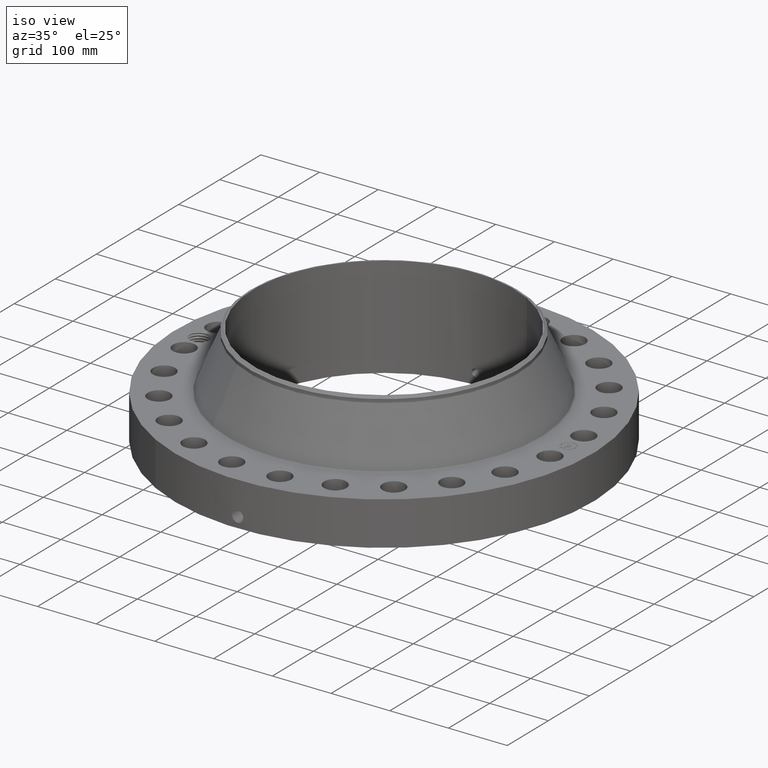
[diagram: clean part render]
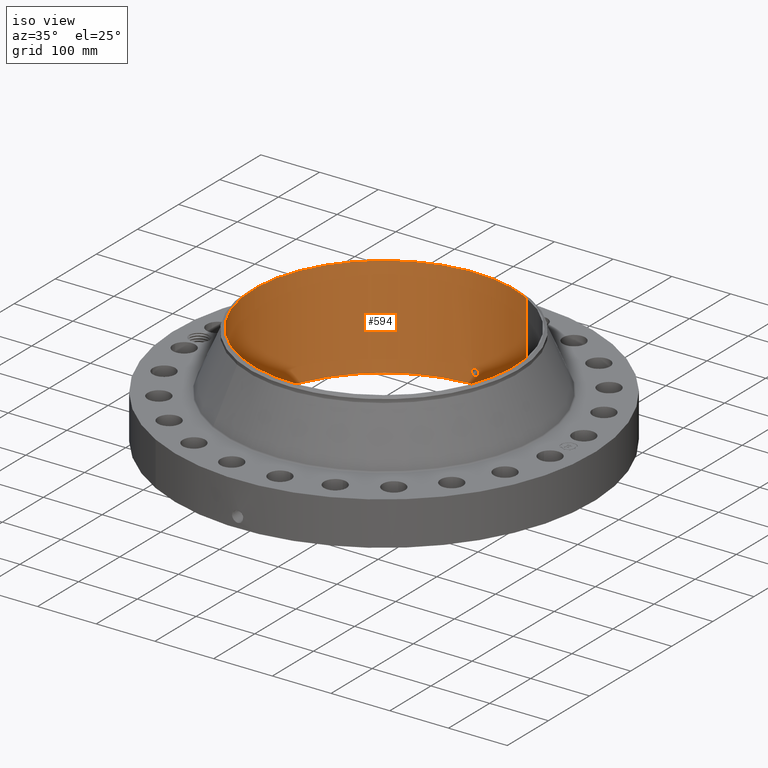
[diagram: same view with one face highlighted and labeled with its STEP entity id]
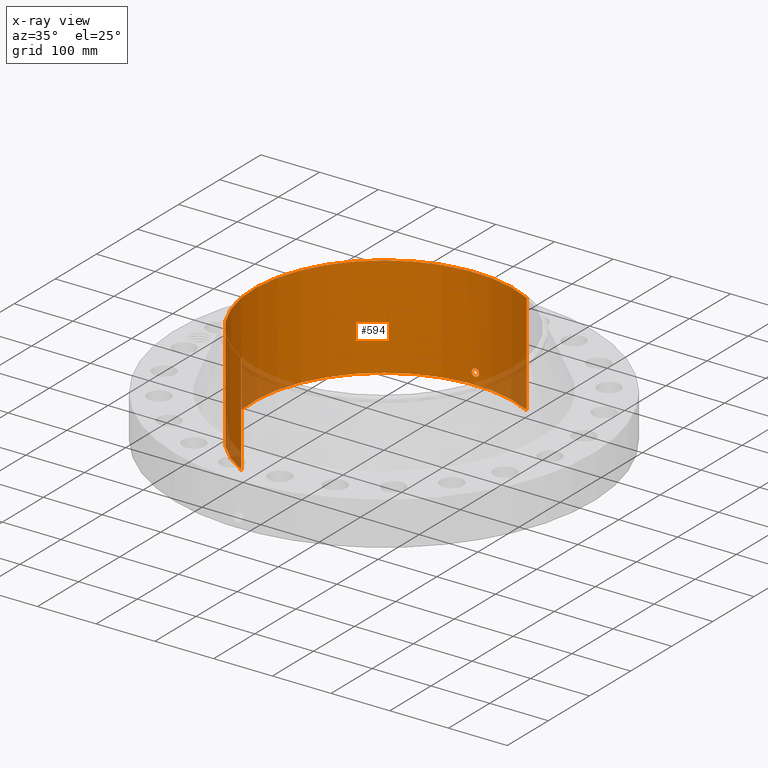
[diagram: x-ray of the same camera — body ghosted, the highlighted face saturated]
A machine part, iso view. The second image highlights one B-rep face of the part: STEP entity #594.
The next image is the same camera in x-ray: the body ghosted, the highlighted face saturated — about 8% of this face is hidden behind the body in this view.
In plain terms, the highlighted cylindrical surface (partial cylindrical patch) has radius 222.25 mm, axis along (0, 0, -1).
Its self-contained STEP definition (entity closure, byte-faithful):
#232=AXIS2_PLACEMENT_3D('Cylinder Axis2P3D',#229,#230,#231) ;
#533=AXIS2_PLACEMENT_3D('Circle Axis2P3D',#531,#532,$) ;
#543=AXIS2_PLACEMENT_3D('Circle Axis2P3D',#541,#542,$) ;
#229=CARTESIAN_POINT('Axis2P3D Location',(0.,0.,3.40600000001)) ;
#238=CARTESIAN_POINT('Vertex',(4.1949734628,7.67884741657,6.81200000003)) ;
#240=CARTESIAN_POINT('Vertex',(-4.1949734628,-7.67884741657,6.81200000003)) ;
#243=CARTESIAN_POINT('Line Origine',(4.1949734628,7.67884741657,3.40600000001)) ;
#247=CARTESIAN_POINT('Vertex',(4.1949734628,7.67884741657,-4.58775624664E-014)) ;
#254=CARTESIAN_POINT('Vertex',(-4.1949734628,-7.67884741657,-4.58775624664E-014)) ;
#257=CARTESIAN_POINT('Line Origine',(-4.1949734628,-7.67884741657,3.40600000001)) ;
#531=CARTESIAN_POINT('Axis2P3D Location',(0.,0.,6.81200000003)) ;
#541=CARTESIAN_POINT('Axis2P3D Location',(0.,0.,-4.69965274046E-014)) ;
#553=CARTESIAN_POINT('Control Point',(0.219395640473,8.74724902775,0.869856384655)) ;
#554=CARTESIAN_POINT('Control Point',(0.194443068234,8.74787488001,0.915531761763)) ;
#555=CARTESIAN_POINT('Control Point',(0.157605447995,8.74870979795,0.95471135696)) ;
#556=CARTESIAN_POINT('Control Point',(0.111108465446,8.74952178207,0.983242897857)) ;
#557=CARTESIAN_POINT('Control Point',(0.0336737442759,8.7501678247,1.00588252688)) ;
#558=CARTESIAN_POINT('Control Point',(-0.0446708131427,8.74994457888,0.998056408516)) ;
#559=CARTESIAN_POINT('Control Point',(-0.070300497269,8.74977127149,0.992043838072)) ;
#560=CARTESIAN_POINT('Control Point',(-0.143956538958,8.74900541221,0.964211964572)) ;
#561=CARTESIAN_POINT('Control Point',(-0.203244057709,8.74775530938,0.909497602452)) ;
#562=CARTESIAN_POINT('Control Point',(-0.232209404977,8.74693537812,0.863258633491)) ;
#563=CARTESIAN_POINT('Control Point',(-0.2558404667,8.74626133799,0.785111822566)) ;
#564=CARTESIAN_POINT('Control Point',(-0.248282857581,8.74647673028,0.705747039654)) ;
#565=CARTESIAN_POINT('Control Point',(-0.242049079217,8.74665697291,0.679184426882)) ;
#566=CARTESIAN_POINT('Control Point',(-0.23231552214,8.74692497551,0.653793300107)) ;
#567=CARTESIAN_POINT('Control Point',(-0.219395640473,8.74724902775,0.630143615351)) ;
#568=CARTESIAN_POINT('Vertex',(0.219395640473,8.74724902775,0.869856384655)) ;
#570=CARTESIAN_POINT('Vertex',(-0.219395640473,8.74724902775,0.630143615351)) ;
#574=CARTESIAN_POINT('Control Point',(-0.219395640473,8.74724902775,0.630143615351)) ;
#575=CARTESIAN_POINT('Control Point',(-0.194443068235,8.74787488001,0.584468238244)) ;
#576=CARTESIAN_POINT('Control Point',(-0.157605447997,8.74870979795,0.545288643049)) ;
#577=CARTESIAN_POINT('Control Point',(-0.111108465441,8.74952178207,0.516757102147)) ;
#578=CARTESIAN_POINT('Control Point',(-0.0336737442793,8.7501678247,0.494117473125)) ;
#579=CARTESIAN_POINT('Control Point',(0.0446708131304,8.74994457888,0.501943591489)) ;
#580=CARTESIAN_POINT('Control Point',(0.0703004972844,8.74977127149,0.507956161939)) ;
#581=CARTESIAN_POINT('Control Point',(0.143956538964,8.74900541221,0.53578803544)) ;
#582=CARTESIAN_POINT('Control Point',(0.20324405771,8.74775530938,0.590502397555)) ;
#583=CARTESIAN_POINT('Control Point',(0.232209404978,8.74693537812,0.636741366517)) ;
#584=CARTESIAN_POINT('Control Point',(0.255840466678,8.74626133799,0.714888177369)) ;
#585=CARTESIAN_POINT('Control Point',(0.248282857595,8.74647673028,0.794252960204)) ;
#586=CARTESIAN_POINT('Control Point',(0.242049079163,8.74665697291,0.820815573265)) ;
#587=CARTESIAN_POINT('Control Point',(0.232315522104,8.74692497551,0.846206699964)) ;
#588=CARTESIAN_POINT('Control Point',(0.219395640473,8.74724902775,0.869856384655)) ;
#230=DIRECTION('Axis2P3D Direction',(0.,0.,-0.0393700787402)) ;
#231=DIRECTION('Axis2P3D XDirection',(-0.0188750212049,-0.0345504945626,0.)) ;
#244=DIRECTION('Vector Direction',(0.,0.,-0.0393700787402)) ;
#258=DIRECTION('Vector Direction',(0.,0.,-0.0393700787402)) ;
#532=DIRECTION('Axis2P3D Direction',(0.,0.,-0.0393700787402)) ;
#542=DIRECTION('Axis2P3D Direction',(0.,0.,-0.0393700787402)) ;
#245=VECTOR('Line Direction',#244,0.0393700787402) ;
#259=VECTOR('Line Direction',#258,0.0393700787402) ;
#547=ORIENTED_EDGE('',*,*,#535,.F.) ;
#548=ORIENTED_EDGE('',*,*,#261,.T.) ;
#549=ORIENTED_EDGE('',*,*,#545,.T.) ;
#550=ORIENTED_EDGE('',*,*,#249,.F.) ;
#591=ORIENTED_EDGE('',*,*,#572,.F.) ;
#592=ORIENTED_EDGE('',*,*,#589,.F.) ;
#593=FACE_BOUND('',#590,.T.) ;
#594=ADVANCED_FACE('PartBody',(#551,#593),#233,.F.) ;
#552=B_SPLINE_CURVE_WITH_KNOTS('',5,(#553,#554,#555,#556,#557,#558,#559,#560,#561,#562,#563,#564,#565,#566,#567),.UNSPECIFIED.,.F.,.U.,(6,3,3,3,6),(0.,9.34855035837,14.0228595161,23.3728957232,28.2133652036),.UNSPECIFIED.) ;
#573=B_SPLINE_CURVE_WITH_KNOTS('',5,(#574,#575,#576,#577,#578,#579,#580,#581,#582,#583,#584,#585,#586,#587,#588),.UNSPECIFIED.,.F.,.U.,(6,3,3,3,6),(0.,9.34855035807,14.0228595145,23.3728957216,28.2133651886),.UNSPECIFIED.) ;
#534=CIRCLE('generated circle',#533,8.75000000004) ;
#544=CIRCLE('generated circle',#543,8.75000000003) ;
#233=CYLINDRICAL_SURFACE('generated cylinder',#232,8.75000000003) ;
#249=EDGE_CURVE('',#239,#248,#246,.T.) ;
#261=EDGE_CURVE('',#241,#255,#260,.T.) ;
#535=EDGE_CURVE('',#241,#239,#534,.T.) ;
#545=EDGE_CURVE('',#255,#248,#544,.T.) ;
#572=EDGE_CURVE('',#569,#571,#552,.T.) ;
#589=EDGE_CURVE('',#571,#569,#573,.T.) ;
#546=EDGE_LOOP('',(#547,#548,#549,#550)) ;
#590=EDGE_LOOP('',(#591,#592)) ;
#551=FACE_OUTER_BOUND('',#546,.T.) ;
#246=LINE('Line',#243,#245) ;
#260=LINE('Line',#257,#259) ;
#239=VERTEX_POINT('',#238) ;
#241=VERTEX_POINT('',#240) ;
#248=VERTEX_POINT('',#247) ;
#255=VERTEX_POINT('',#254) ;
#569=VERTEX_POINT('',#568) ;
#571=VERTEX_POINT('',#570) ;